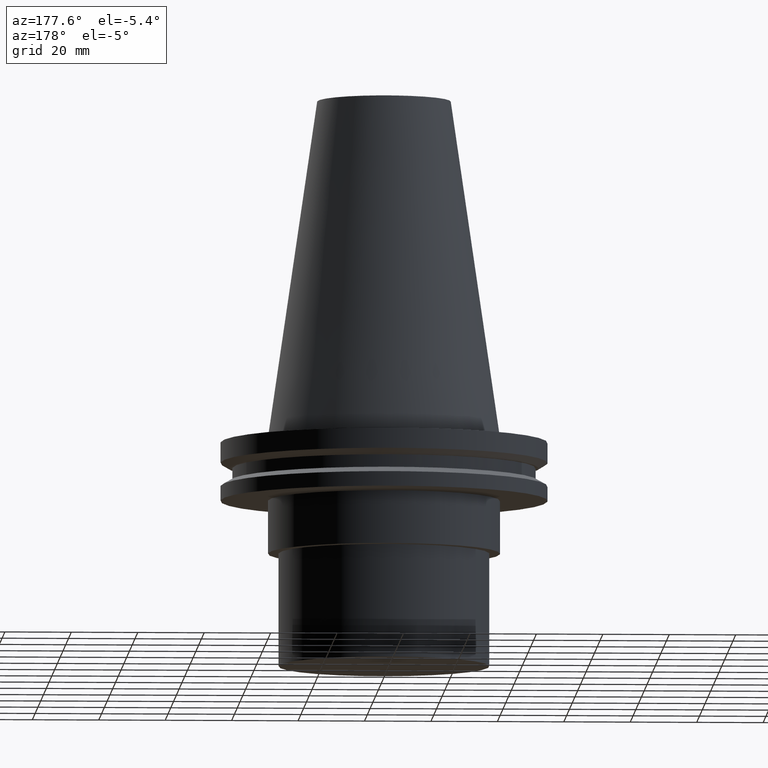
[diagram: clean part render]
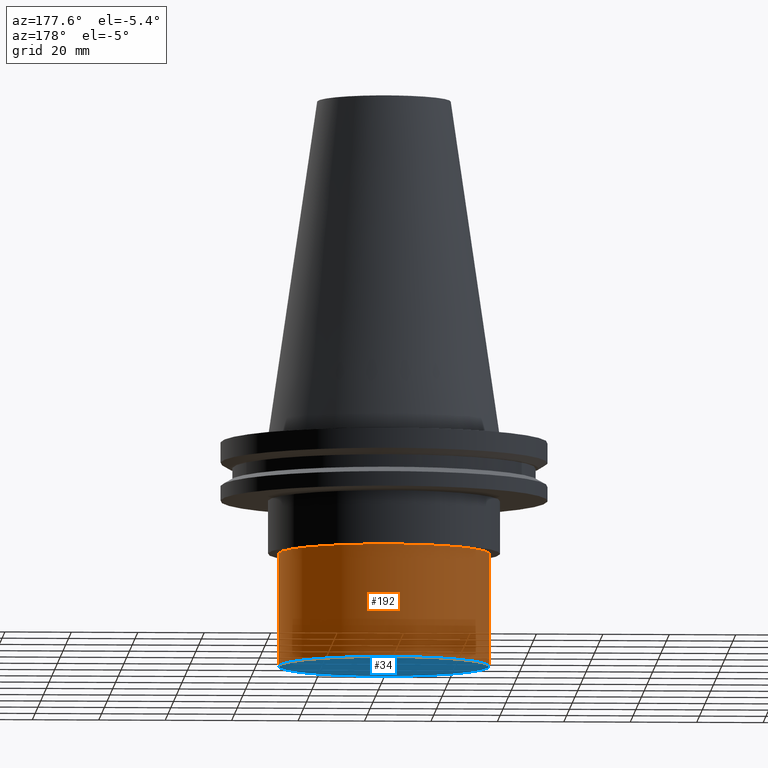
[diagram: same view with the hole feature highlighted: cylindrical wall and planar end face, labeled with their STEP entity ids]
A machine part, auxiliary view. The highlighted faces form one hole feature of diameter 63.5 mm: the cylindrical wall (entity #192, orange) and its adjacent planar end face (entity #34, blue) — they share a circular edge in the B-rep.
Wall:
#13 = VERTEX_POINT ( 'NONE', #253 ) ;
#40 = AXIS2_PLACEMENT_3D ( 'NONE', #151, #115, #122 ) ;
#61 = DIRECTION ( 'NONE',  ( 1.000000000000000000, 0.000000000000000000, 0.000000000000000000 ) ) ;
#75 = EDGE_CURVE ( 'NONE', #380, #380, #190, .T. ) ;
#86 = DIRECTION ( 'NONE',  ( 1.000000000000000000, 0.000000000000000000, 0.000000000000000000 ) ) ;
#113 = EDGE_LOOP ( 'NONE', ( #165 ) ) ;
#115 = DIRECTION ( 'NONE',  ( -0.000000000000000000, -0.000000000000000000, 1.000000000000000000 ) ) ;
#122 = DIRECTION ( 'NONE',  ( 1.000000000000000000, 0.000000000000000000, 0.000000000000000000 ) ) ;
#129 = AXIS2_PLACEMENT_3D ( 'NONE', #391, #203, #61 ) ;
#138 = CARTESIAN_POINT ( 'NONE',  ( 31.75000000000000000, 0.000000000000000000, -35.00000000000000000 ) ) ;
#151 = CARTESIAN_POINT ( 'NONE',  ( 0.000000000000000000, 0.000000000000000000, -35.00000000000000000 ) ) ;
#154 = FACE_OUTER_BOUND ( 'NONE', #317, .T. ) ;
#165 = ORIENTED_EDGE ( 'NONE', *, *, #209, .T. ) ;
#190 = CIRCLE ( 'NONE', #40, 31.75000000000000000 ) ;
#192 = ADVANCED_FACE ( 'NONE', ( #154, #262 ), #268, .T. ) ;
#203 = DIRECTION ( 'NONE',  ( -0.000000000000000000, -0.000000000000000000, 1.000000000000000000 ) ) ;
#209 = EDGE_CURVE ( 'NONE', #13, #13, #331, .T. ) ;
#247 = AXIS2_PLACEMENT_3D ( 'NONE', #384, #328, #86 ) ;
#253 = CARTESIAN_POINT ( 'NONE',  ( 31.75000000000000000, 0.000000000000000000, -69.00000000000000000 ) ) ;
#262 = FACE_OUTER_BOUND ( 'NONE', #113, .T. ) ;
#268 = CYLINDRICAL_SURFACE ( 'NONE', #247, 31.75000000000000000 ) ;
#317 = EDGE_LOOP ( 'NONE', ( #319 ) ) ;
#319 = ORIENTED_EDGE ( 'NONE', *, *, #75, .F. ) ;
#328 = DIRECTION ( 'NONE',  ( -0.000000000000000000, -0.000000000000000000, 1.000000000000000000 ) ) ;
#331 = CIRCLE ( 'NONE', #129, 31.75000000000000000 ) ;
#380 = VERTEX_POINT ( 'NONE', #138 ) ;
#384 = CARTESIAN_POINT ( 'NONE',  ( 0.000000000000000000, 0.000000000000000000, 0.000000000000000000 ) ) ;
#391 = CARTESIAN_POINT ( 'NONE',  ( 0.000000000000000000, 0.000000000000000000, -69.00000000000000000 ) ) ;
End face:
#11 = ORIENTED_EDGE ( 'NONE', *, *, #209, .F. ) ;
#13 = VERTEX_POINT ( 'NONE', #253 ) ;
#34 = ADVANCED_FACE ( 'NONE', ( #194 ), #329, .F. ) ;
#55 = EDGE_LOOP ( 'NONE', ( #11 ) ) ;
#61 = DIRECTION ( 'NONE',  ( 1.000000000000000000, 0.000000000000000000, 0.000000000000000000 ) ) ;
#62 = DIRECTION ( 'NONE',  ( 1.000000000000000000, 0.000000000000000000, 0.000000000000000000 ) ) ;
#64 = DIRECTION ( 'NONE',  ( 0.000000000000000000, -0.000000000000000000, 1.000000000000000000 ) ) ;
#123 = AXIS2_PLACEMENT_3D ( 'NONE', #210, #64, #62 ) ;
#129 = AXIS2_PLACEMENT_3D ( 'NONE', #391, #203, #61 ) ;
#194 = FACE_OUTER_BOUND ( 'NONE', #55, .T. ) ;
#203 = DIRECTION ( 'NONE',  ( -0.000000000000000000, -0.000000000000000000, 1.000000000000000000 ) ) ;
#209 = EDGE_CURVE ( 'NONE', #13, #13, #331, .T. ) ;
#210 = CARTESIAN_POINT ( 'NONE',  ( 0.000000000000000000, 31.75000000000000000, -69.00000000000000000 ) ) ;
#253 = CARTESIAN_POINT ( 'NONE',  ( 31.75000000000000000, 0.000000000000000000, -69.00000000000000000 ) ) ;
#329 = PLANE ( 'NONE',  #123 ) ;
#331 = CIRCLE ( 'NONE', #129, 31.75000000000000000 ) ;
#391 = CARTESIAN_POINT ( 'NONE',  ( 0.000000000000000000, 0.000000000000000000, -69.00000000000000000 ) ) ;